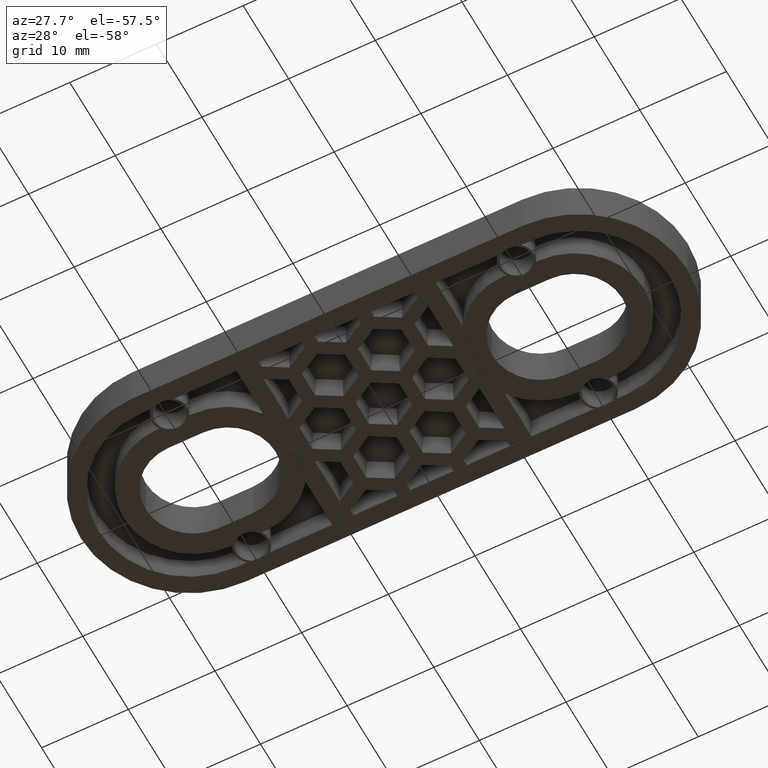
[diagram: clean part render]
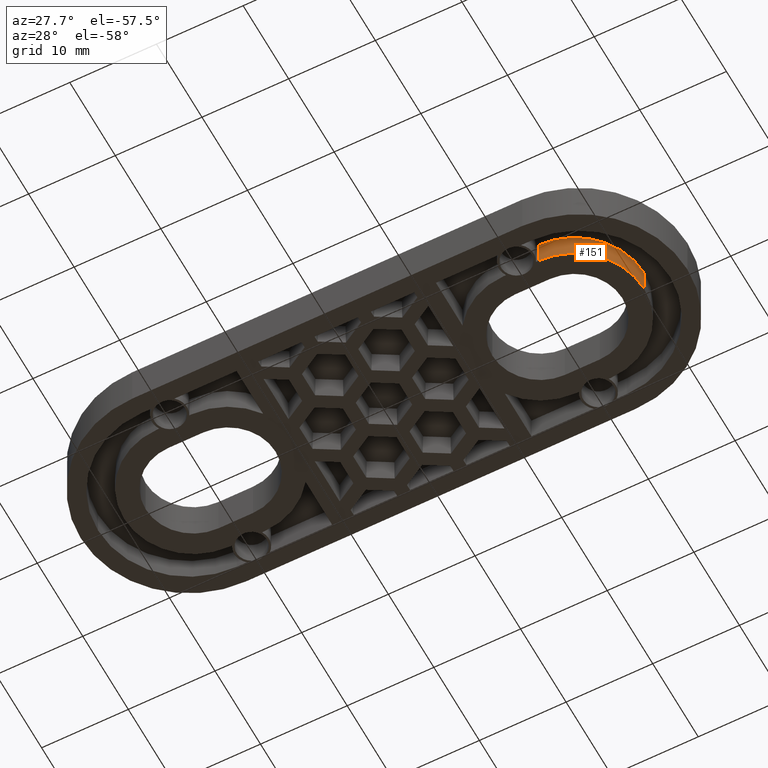
[diagram: same view with one face highlighted and labeled with its STEP entity id]
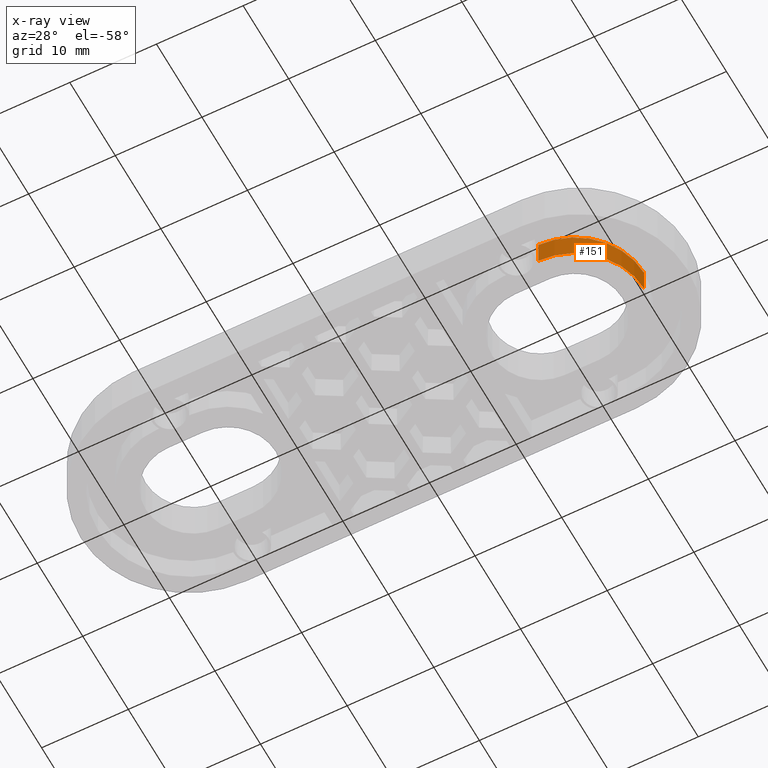
[diagram: x-ray of the same camera — body ghosted, the highlighted face saturated]
A machine part, auxiliary view. The second image highlights one B-rep face of the part: STEP entity #151.
The next image is the same camera in x-ray: the body ghosted, the highlighted face saturated — about 0% of this face is hidden behind the body in this view.
In plain terms, the highlighted cylindrical surface (partial cylindrical patch) has radius 8 mm, axis along (0, -0, -1).
Its self-contained STEP definition (entity closure, byte-faithful):
#151 = ADVANCED_FACE( '', ( #482 ), #483, .T. );
#482 = FACE_OUTER_BOUND( '', #958, .T. );
#483 = CYLINDRICAL_SURFACE( '', #959, 7.99999999999999 );
#958 = EDGE_LOOP( '', ( #1998, #1999, #2000, #2001 ) );
#959 = AXIS2_PLACEMENT_3D( '', #2002, #2003, #2004 );
#1998 = ORIENTED_EDGE( '', *, *, #3352, .T. );
#1999 = ORIENTED_EDGE( '', *, *, #3046, .T. );
#2000 = ORIENTED_EDGE( '', *, *, #3058, .F. );
#2001 = ORIENTED_EDGE( '', *, *, #3226, .T. );
#2002 = CARTESIAN_POINT( '', ( 22.0000000000000, 3.46944695195361E-015, -7.65378971138986E-016 ) );
#2003 = DIRECTION( '', ( 0.000000000000000, -6.12303176911189E-017, -1.00000000000000 ) );
#2004 = DIRECTION( '', ( -5.78241158658936E-017, 1.00000000000000, -6.12303176911189E-017 ) );
#3046 = EDGE_CURVE( '', #3659, #3657, #3660, .T. );
#3058 = EDGE_CURVE( '', #3679, #3657, #3681, .T. );
#3226 = EDGE_CURVE( '', #3679, #3988, #3990, .T. );
#3352 = EDGE_CURVE( '', #3988, #3659, #4205, .T. );
#3657 = VERTEX_POINT( '', #4613 );
#3659 = VERTEX_POINT( '', #4616 );
#3660 = CIRCLE( '', #4617, 7.99999999999999 );
#3679 = VERTEX_POINT( '', #4642 );
#3681 = LINE( '', #4645, #4646 );
#3988 = VERTEX_POINT( '', #5099 );
#3990 = CIRCLE( '', #5101, 7.99999999999999 );
#4205 = LINE( '', #5418, #5419 );
#4613 = CARTESIAN_POINT( '', ( 22.0000000000000, -7.99999999999999, 3.00000000000000 ) );
#4616 = CARTESIAN_POINT( '', ( 30.0000000000000, 3.46944695195361E-015, 3.00000000000000 ) );
#4617 = AXIS2_PLACEMENT_3D( '', #5868, #5869, #5870 );
#4642 = CARTESIAN_POINT( '', ( 22.0000000000000, -7.99999999999999, -2.75536429610035E-016 ) );
#4645 = CARTESIAN_POINT( '', ( 22.0000000000000, -7.99999999999999, -2.75536429610035E-016 ) );
#4646 = VECTOR( '', #5890, 1000.00000000000 );
#5099 = CARTESIAN_POINT( '', ( 30.0000000000000, 3.46944695195361E-015, -7.65378971138986E-016 ) );
#5101 = AXIS2_PLACEMENT_3D( '', #6100, #6101, #6102 );
#5418 = CARTESIAN_POINT( '', ( 30.0000000000000, 3.46944695195361E-015, -7.65378971138986E-016 ) );
#5419 = VECTOR( '', #6274, 1000.00000000000 );
#5868 = CARTESIAN_POINT( '', ( 22.0000000000000, 3.46944695195361E-015, 3.00000000000000 ) );
#5869 = DIRECTION( '', ( 0.000000000000000, -6.12303176911189E-017, -1.00000000000000 ) );
#5870 = DIRECTION( '', ( 0.000000000000000, 1.00000000000000, -6.12303176911189E-017 ) );
#5890 = DIRECTION( '', ( 0.000000000000000, 6.12303176911189E-017, 1.00000000000000 ) );
#6100 = CARTESIAN_POINT( '', ( 22.0000000000000, 3.46944695195361E-015, -7.65378971138986E-016 ) );
#6101 = DIRECTION( '', ( 0.000000000000000, 6.12303176911189E-017, 1.00000000000000 ) );
#6102 = DIRECTION( '', ( 5.78241158658936E-017, -1.00000000000000, 6.12303176911189E-017 ) );
#6274 = DIRECTION( '', ( 0.000000000000000, 6.12303176911189E-017, 1.00000000000000 ) );